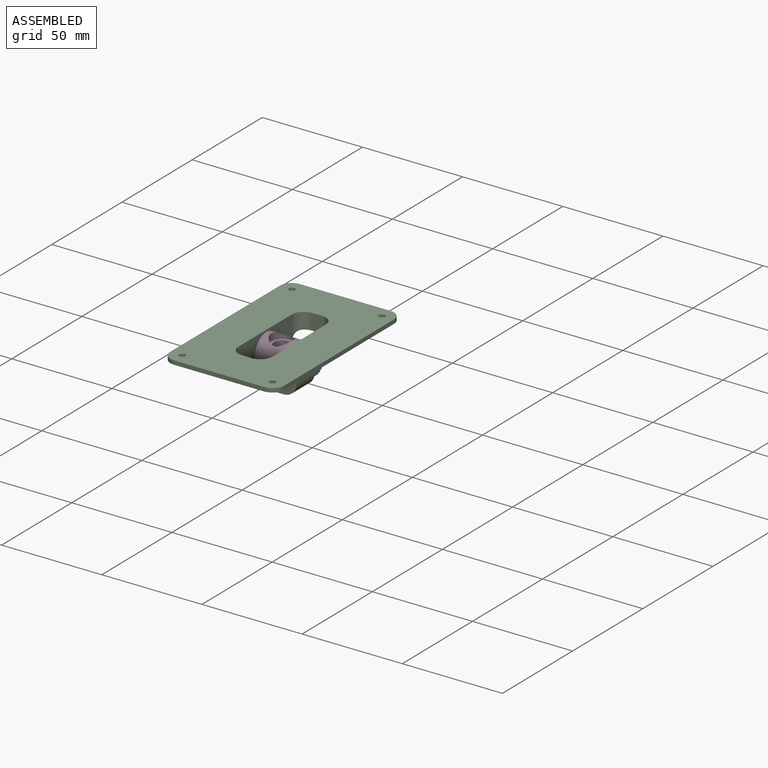
[diagram: assembled view]
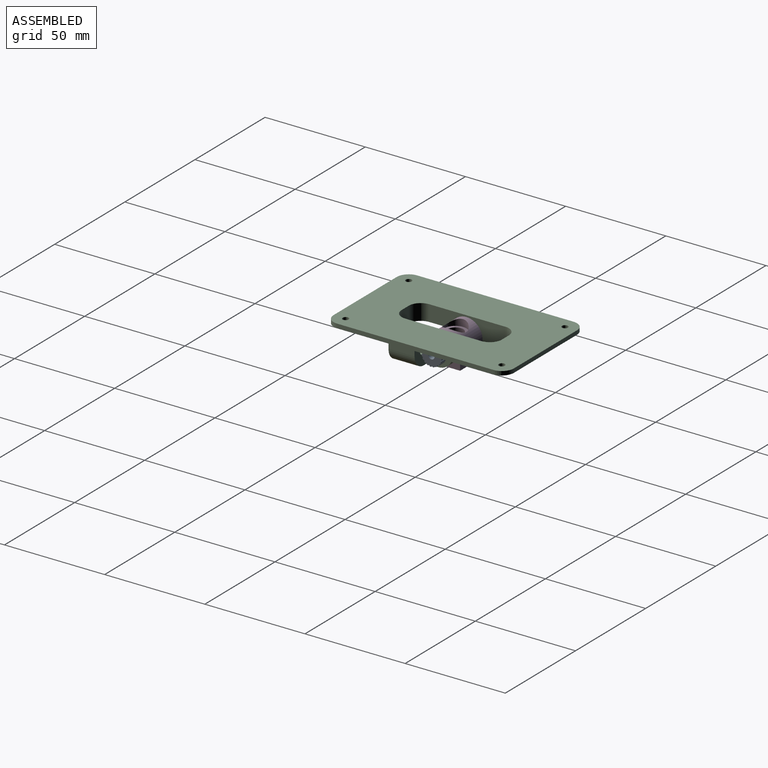
[diagram: assembled view, second angle]
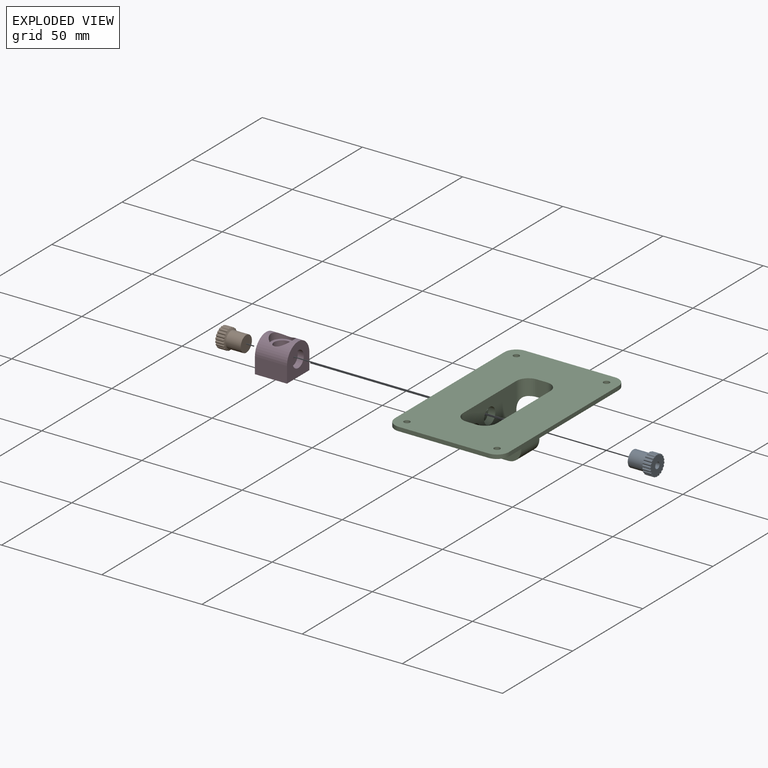
[diagram: exploded view]
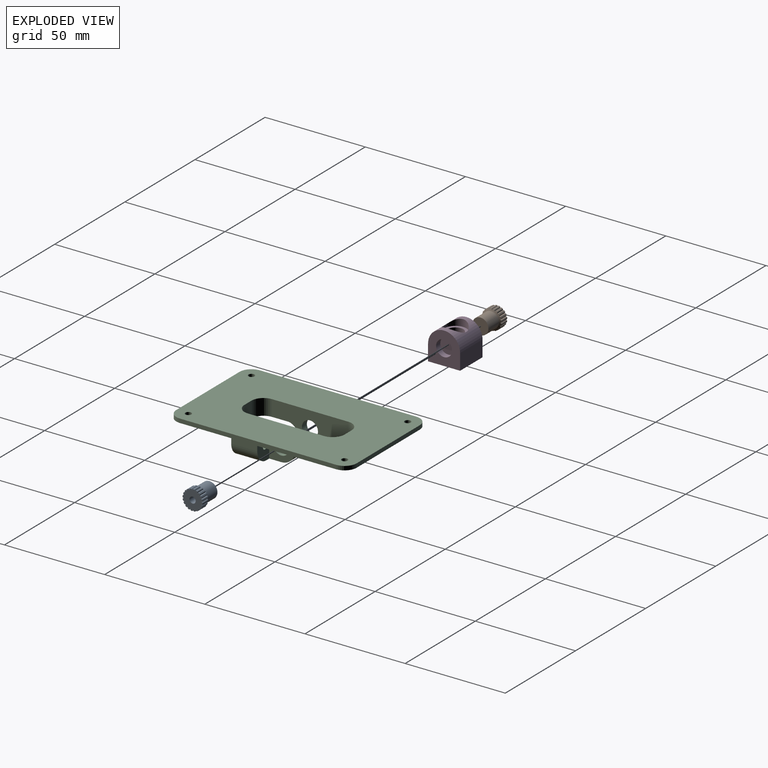
[diagram: exploded view, second angle]
ASSEMBLY  parts=4 mates=2
PART A: 126 faces, bbox 12x10x10 mm
  f0: plane 0.54x0.49mm, normal (1,0,0), area 0mm2, adj f21,f61,f62,f125
  f1: plane 0.67x0.3mm, normal (1,0,0), area 0mm2, adj f20,f65,f66,f125
  f2: plane 0.73x0.09mm, normal (1,0,0), area 0mm2, adj f19,f69,f70,f125
  f3: plane 0.71x0.16mm, normal (1,0,0), area 0mm2, adj f38,f73,f74,f125
  f4: plane 0.63x0.37mm, normal (1,0,0), area 0mm2, adj f37,f77,f78,f125
  f5: plane 0.54x0.49mm, normal (1,0,0), area 0mm2, adj f36,f81,f82,f125
  f6: plane 0.67x0.3mm, normal (1,0,0), area 0mm2, adj f35,f85,f86,f125
  f7: plane 0.73x0.09mm, normal (1,0,0), area 0mm2, adj f34,f89,f90,f125
  f8: plane 0.71x0.16mm, normal (1,0,0), area 0mm2, adj f33,f93,f94,f125
  f9: plane 0.63x0.37mm, normal (1,0,0), area 0mm2, adj f32,f97,f98,f125
  f10: plane 0.54x0.49mm, normal (1,0,0), area 0mm2, adj f31,f101,f102,f125
  f11: plane 0.67x0.3mm, normal (1,0,0), area 0mm2, adj f30,f105,f106,f125
  f12: plane 0.73x0.09mm, normal (1,0,0), area 0mm2, adj f29,f109,f110,f125
  f13: plane 0.71x0.16mm, normal (1,0,0), area 0mm2, adj f28,f113,f114,f125
  f14: plane 0.63x0.37mm, normal (1,0,0), area 0mm2, adj f27,f117,f118,f125
  f15: plane 0.54x0.49mm, normal (1,0,0), area 0mm2, adj f26,f42,f121,f125
  f16: plane 0.67x0.3mm, normal (1,0,0), area 0mm2, adj f25,f45,f46,f125
  f17: plane 0.73x0.09mm, normal (1,0,0), area 0mm2, adj f24,f49,f50,f125
  f18: plane 0.71x0.16mm, normal (1,0,0), area 0mm2, adj f23,f53,f54,f125
  f19: cylinder r=5mm len=4mm, axis (-1,0,0), area 2.2mm2, adj f2,f39,f69,f70
  f20: cylinder r=5mm len=4mm, axis (-1,0,0), area 2.2mm2, adj f1,f39,f65,f66
  f21: cylinder r=5mm len=4mm, axis (-1,0,0), area 2.2mm2, adj f0,f39,f61,f62
  f22: cylinder r=5mm len=4mm, axis (-1,0,0), area 2.2mm2, adj f39,f57,f58,f123
  f23: cylinder r=5mm len=4mm, axis (-1,0,0), area 2.2mm2, adj f18,f39,f53,f54
  f24: cylinder r=5mm len=4mm, axis (-1,0,0), area 2.2mm2, adj f17,f39,f49,f50
  f25: cylinder r=5mm len=4mm, axis (-1,0,0), area 2.2mm2, adj f16,f39,f45,f46
  f26: cylinder r=5mm len=4mm, axis (-1,0,0), area 2.2mm2, adj f15,f39,f42,f121
  f27: cylinder r=5mm len=4mm, axis (-1,0,0), area 2.2mm2, adj f14,f39,f117,f118
  f28: cylinder r=5mm len=4mm, axis (-1,0,0), area 2.2mm2, adj f13,f39,f113,f114
  f29: cylinder r=5mm len=4mm, axis (-1,0,0), area 2.2mm2, adj f12,f39,f109,f110
  f30: cylinder r=5mm len=4mm, axis (-1,0,0), area 2.2mm2, adj f11,f39,f105,f106
  f31: cylinder r=5mm len=4mm, axis (-1,0,0), area 2.2mm2, adj f10,f39,f101,f102
  f32: cylinder r=5mm len=4mm, axis (-1,0,0), area 2.2mm2, adj f9,f39,f97,f98
  f33: cylinder r=5mm len=4mm, axis (-1,0,0), area 2.2mm2, adj f8,f39,f93,f94
  f34: cylinder r=5mm len=4mm, axis (-1,0,0), area 2.2mm2, adj f7,f39,f89,f90
  f35: cylinder r=5mm len=4mm, axis (-1,0,0), area 2.2mm2, adj f6,f39,f85,f86
  f36: cylinder r=5mm len=4mm, axis (-1,0,0), area 2.2mm2, adj f5,f39,f81,f82
  f37: cylinder r=5mm len=4mm, axis (-1,0,0), area 2.2mm2, adj f4,f39,f77,f78
  f38: cylinder r=5mm len=4mm, axis (-1,0,0), area 2.2mm2, adj f3,f39,f73,f74
  f39: plane 9.99x9.99mm, normal (-1,0,0), area 67mm2, adj f19,f20,f21,f22,f23,f24,f25,f26
  f40: cylinder r=1.56mm len=8mm, axis (-1,0,0), area 78.5mm2, adj f39,f41
  f41: plane 3.13x3.13mm, normal (-1,0,0), area 7.7mm2, adj f40
  f42: cylinder r=0.25mm len=4.05mm, axis (-1,0,0), area 1mm2, adj f15,f26,f39,f43,f125
  f43: plane 4.26x0.46mm, normal (0,0.33,0.94), area 2mm2, adj f39,f42,f44,f125
  f44: plane 4.26x0.49mm, normal (0,-1,0.08), area 2mm2, adj f39,f43,f45,f125
  f45: cylinder r=0.25mm len=4.05mm, axis (-1,0,0), area 1mm2, adj f16,f25,f39,f44,f125
  f46: cylinder r=0.25mm len=4.05mm, axis (-1,0,0), area 1mm2, adj f16,f25,f39,f47,f125
  f47: plane 4.26x0.39mm, normal (0,0.61,0.79), area 2mm2, adj f39,f46,f48,f125
  f48: plane 4.26x0.45mm, normal (0,-0.92,0.39), area 2mm2, adj f39,f47,f49,f125
  f49: cylinder r=0.25mm len=4.05mm, axis (-1,0,0), area 1mm2, adj f17,f24,f39,f48,f125
  f50: cylinder r=0.25mm len=4.05mm, axis (-1,0,0), area 1mm2, adj f17,f24,f39,f51,f125
  f51: plane 4.26x0.41mm, normal (0,0.82,0.57), area 2mm2, adj f39,f50,f52,f125
  f52: plane 4.26x0.37mm, normal (0,-0.76,0.65), area 2mm2, adj f39,f51,f53,f125
  f53: cylinder r=0.25mm len=4.05mm, axis (-1,0,0), area 1mm2, adj f18,f23,f39,f52,f125
  f54: cylinder r=0.25mm len=4.05mm, axis (-1,0,0), area 1mm2, adj f18,f23,f39,f55,f125
  f55: plane 4.26x0.47mm, normal (0,0.96,0.28), area 2mm2, adj f39,f54,f56,f125
  f56: plane 4.26x0.42mm, normal (0,-0.52,0.86), area 2mm2, adj f39,f55,f57,f125
  f57: cylinder r=0.25mm len=4.05mm, axis (-1,0,0), area 1mm2, adj f22,f39,f56,f123,f125
  f58: cylinder r=0.25mm len=4.05mm, axis (-1,0,0), area 1mm2, adj f22,f39,f59,f123,f125
  f59: plane 4.26x0.49mm, normal (0,1,-0.03), area 2mm2, adj f39,f58,f60,f125
  f60: plane 4.26x0.48mm, normal (0,-0.23,0.97), area 2mm2, adj f39,f59,f61,f125
  f61: cylinder r=0.25mm len=4.05mm, axis (-1,0,0), area 1mm2, adj f0,f21,f39,f60,f125
  f62: cylinder r=0.25mm len=4.05mm, axis (-1,0,0), area 1mm2, adj f0,f21,f39,f63,f125
  f63: plane 4.26x0.46mm, normal (0,0.94,-0.33), area 2mm2, adj f39,f62,f64,f125
  f64: plane 4.26x0.49mm, normal (0,0.08,1), area 2mm2, adj f39,f63,f65,f125
  f65: cylinder r=0.25mm len=4.05mm, axis (-1,0,0), area 1mm2, adj f1,f20,f39,f64,f125
  f66: cylinder r=0.25mm len=4.05mm, axis (-1,0,0), area 1mm2, adj f1,f20,f39,f67,f125
  f67: plane 4.26x0.39mm, normal (0,0.79,-0.61), area 2mm2, adj f39,f66,f68,f125
  f68: plane 4.26x0.45mm, normal (0,0.39,0.92), area 2mm2, adj f39,f67,f69,f125
  f69: cylinder r=0.25mm len=4.05mm, axis (-1,0,0), area 1mm2, adj f2,f19,f39,f68,f125
  f70: cylinder r=0.25mm len=4.05mm, axis (-1,0,0), area 1mm2, adj f2,f19,f39,f71,f125
  f71: plane 4.26x0.41mm, normal (0,0.57,-0.82), area 2mm2, adj f39,f70,f72,f125
  f72: plane 4.26x0.37mm, normal (0,0.65,0.76), area 2mm2, adj f39,f71,f73,f125
  f73: cylinder r=0.25mm len=4.05mm, axis (-1,0,0), area 1mm2, adj f3,f38,f39,f72,f125
  f74: cylinder r=0.25mm len=4.05mm, axis (-1,0,0), area 1mm2, adj f3,f38,f39,f75,f125
  f75: plane 4.26x0.47mm, normal (0,0.28,-0.96), area 2mm2, adj f39,f74,f76,f125
  f76: plane 4.26x0.42mm, normal (0,0.86,0.52), area 2mm2, adj f39,f75,f77,f125
  f77: cylinder r=0.25mm len=4.05mm, axis (-1,0,0), area 1mm2, adj f4,f37,f39,f76,f125
  f78: cylinder r=0.25mm len=4.05mm, axis (-1,0,0), area 1mm2, adj f4,f37,f39,f79,f125
  f79: plane 4.26x0.49mm, normal (0,-0.03,-1), area 2mm2, adj f39,f78,f80,f125
  f80: plane 4.26x0.48mm, normal (0,0.97,0.23), area 2mm2, adj f39,f79,f81,f125
  f81: cylinder r=0.25mm len=4.05mm, axis (-1,0,0), area 1mm2, adj f5,f36,f39,f80,f125
  f82: cylinder r=0.25mm len=4.05mm, axis (-1,0,0), area 1mm2, adj f5,f36,f39,f83,f125
  f83: plane 4.26x0.46mm, normal (0,-0.33,-0.94), area 2mm2, adj f39,f82,f84,f125
  f84: plane 4.26x0.49mm, normal (0,1,-0.08), area 2mm2, adj f39,f83,f85,f125
  f85: cylinder r=0.25mm len=4.05mm, axis (-1,0,0), area 1mm2, adj f6,f35,f39,f84,f125
  f86: cylinder r=0.25mm len=4.05mm, axis (-1,0,0), area 1mm2, adj f6,f35,f39,f87,f125
  f87: plane 4.26x0.39mm, normal (0,-0.61,-0.79), area 2mm2, adj f39,f86,f88,f125
  f88: plane 4.26x0.45mm, normal (0,0.92,-0.39), area 2mm2, adj f39,f87,f89,f125
  f89: cylinder r=0.25mm len=4.05mm, axis (-1,0,0), area 1mm2, adj f7,f34,f39,f88,f125
  f90: cylinder r=0.25mm len=4.05mm, axis (-1,0,0), area 1mm2, adj f7,f34,f39,f91,f125
  f91: plane 4.26x0.41mm, normal (0,-0.82,-0.57), area 2mm2, adj f39,f90,f92,f125
  f92: plane 4.26x0.37mm, normal (0,0.76,-0.65), area 2mm2, adj f39,f91,f93,f125
  f93: cylinder r=0.25mm len=4.05mm, axis (-1,0,0), area 1mm2, adj f8,f33,f39,f92,f125
  f94: cylinder r=0.25mm len=4.05mm, axis (-1,0,0), area 1mm2, adj f8,f33,f39,f95,f125
  f95: plane 4.26x0.47mm, normal (0,-0.96,-0.28), area 2mm2, adj f39,f94,f96,f125
  f96: plane 4.26x0.42mm, normal (0,0.52,-0.86), area 2mm2, adj f39,f95,f97,f125
  f97: cylinder r=0.25mm len=4.05mm, axis (-1,0,0), area 1mm2, adj f9,f32,f39,f96,f125
  f98: cylinder r=0.25mm len=4.05mm, axis (-1,0,0), area 1mm2, adj f9,f32,f39,f99,f125
  f99: plane 4.26x0.49mm, normal (0,-1,0.03), area 2mm2, adj f39,f98,f100,f125
  f100: plane 4.26x0.48mm, normal (0,0.23,-0.97), area 2mm2, adj f39,f99,f101,f125
  f101: cylinder r=0.25mm len=4.05mm, axis (-1,0,0), area 1mm2, adj f10,f31,f39,f100,f125
  f102: cylinder r=0.25mm len=4.05mm, axis (-1,0,0), area 1mm2, adj f10,f31,f39,f103,f125
  f103: plane 4.26x0.46mm, normal (0,-0.94,0.33), area 2mm2, adj f39,f102,f104,f125
  f104: plane 4.26x0.49mm, normal (0,-0.08,-1), area 2mm2, adj f39,f103,f105,f125
  f105: cylinder r=0.25mm len=4.05mm, axis (-1,0,0), area 1mm2, adj f11,f30,f39,f104,f125
  f106: cylinder r=0.25mm len=4.05mm, axis (-1,0,0), area 1mm2, adj f11,f30,f39,f107,f125
  f107: plane 4.26x0.39mm, normal (0,-0.79,0.61), area 2mm2, adj f39,f106,f108,f125
  f108: plane 4.26x0.45mm, normal (0,-0.39,-0.92), area 2mm2, adj f39,f107,f109,f125
  f109: cylinder r=0.25mm len=4.05mm, axis (-1,0,0), area 1mm2, adj f12,f29,f39,f108,f125
  f110: cylinder r=0.25mm len=4.05mm, axis (-1,0,0), area 1mm2, adj f12,f29,f39,f111,f125
  f111: plane 4.26x0.41mm, normal (0,-0.57,0.82), area 2mm2, adj f39,f110,f112,f125
  f112: plane 4.26x0.37mm, normal (0,-0.65,-0.76), area 2mm2, adj f39,f111,f113,f125
  f113: cylinder r=0.25mm len=4.05mm, axis (-1,0,0), area 1mm2, adj f13,f28,f39,f112,f125
  f114: cylinder r=0.25mm len=4.05mm, axis (-1,0,0), area 1mm2, adj f13,f28,f39,f115,f125
  f115: plane 4.26x0.47mm, normal (0,-0.28,0.96), area 2mm2, adj f39,f114,f116,f125
  f116: plane 4.26x0.42mm, normal (0,-0.86,-0.52), area 2mm2, adj f39,f115,f117,f125
  f117: cylinder r=0.25mm len=4.05mm, axis (-1,0,0), area 1mm2, adj f14,f27,f39,f116,f125
  f118: cylinder r=0.25mm len=4.05mm, axis (-1,0,0), area 1mm2, adj f14,f27,f39,f119,f125
  f119: plane 4.26x0.49mm, normal (0,0.03,1), area 2mm2, adj f39,f118,f120,f125
  f120: plane 4.26x0.48mm, normal (0,-0.97,-0.23), area 2mm2, adj f39,f119,f121,f125
  f121: cylinder r=0.25mm len=4.05mm, axis (-1,0,0), area 1mm2, adj f15,f26,f39,f120,f125
  f122: cylinder r=4mm len=8mm, axis (1,0,0), area 188.5mm2, adj f124,f125
  f123: plane 0.63x0.37mm, normal (1,0,0), area 0mm2, adj f22,f57,f58,f125
  f124: plane 8x8mm, normal (1,0,0), area 50.3mm2, adj f122
  f125: cone r=4mm half-angle=63deg, axis (-1,0,0), area 27.2mm2, adj f0,f1,f2,f3,f4,f5,f6,f7
PART B: same geometry as A
PART C: 66 faces, bbox 57x90x15.5 mm
  f0: plane 90x57mm, normal (0,0,-1), area 3559.3mm2, adj f2,f4,f5,f6,f7,f11,f14,f16
  f1: cylinder r=4mm len=8mm, axis (-1,0,0), area 88mm2, adj f11,f13
  f2: plane 13.5x12mm, normal (0,-1,0), area 91.5mm2, adj f0,f13,f15,f16,f17,f19,f20,f21
  f3: cylinder r=4mm len=8mm, axis (1,0,0), area 88mm2, adj f25,f29
  f4: plane 45x2mm, normal (0,-1,0), area 90mm2, adj f0,f8,f43,f47
  f5: plane 78x2mm, normal (1,0,0), area 156mm2, adj f0,f8,f45,f47
  f6: plane 45x2mm, normal (0,1,0), area 90mm2, adj f0,f8,f45,f46
  f7: plane 78x2mm, normal (-1,0,0), area 156mm2, adj f0,f8,f43,f46
  f8: plane 90x57mm, normal (0,0,1), area 4251.7mm2, adj f4,f5,f6,f7,f13,f24,f25,f26
  f9: cylinder r=2.2mm len=9.5mm, axis (0,-1,0), area -1.6mm2, adj f18,f19,f20,f21,f23
  f10: cylinder r=1.5mm len=3mm, axis (0,-1,0), area 24.3mm2, adj f14,f18
  f11: plane 25x13.5mm, normal (1,0,0), area 189.6mm2, adj f0,f1,f12,f14,f15,f54,f57,f62
  f12: cylinder r=7mm len=6.49mm, axis (-1,0,0), area 29.1mm2, adj f11,f13,f15,f62
  f13: plane 38x15.5mm, normal (-1,0,0), area 441.1mm2, adj f1,f2,f8,f12,f15,f52,f53,f54
  f14: plane 13.5x8.5mm, normal (0,1,0), area 98.6mm2, adj f0,f10,f11,f15,f16,f17
  f15: plane 19x5.5mm, normal (0,0,-1), area 92.5mm2, adj f2,f11,f12,f13,f14,f17
  f16: plane 13x7mm, normal (1,0,0), area 91mm2, adj f0,f2,f14,f17
  f17: cylinder r=6.5mm len=13mm, axis (0,1,0), area 132.7mm2, adj f2,f14,f15,f16
  f18: cone r=0mm half-angle=59deg, axis (0,-1,0), area 9.5mm2, adj f9,f10,f22
  f19: cone r=2.2mm half-angle=45deg, axis (0,-1,0), area 6.2mm2, adj f2,f9,f20,f21
  f20: bspline ~10.22x6.12mm, area 129.7mm2, adj f2,f9,f19,f21,f22,f23
  f21: bspline ~10.22x6.12mm, area 125.3mm2, adj f2,f9,f19,f20,f23
  f22: cylinder r=2.2mm len=2.19mm, axis (0,1,0), area 0.3mm2, adj f18,f20,f23
  f23: plane 0.6x0.52mm, normal (0,0,1), area 0.2mm2, adj f9,f20,f21,f22
  f24: plane 8x5mm, normal (0,1,0), area 40mm2, adj f8,f50,f53,f58
  f25: plane 38x15.5mm, normal (1,0,0), area 441.1mm2, adj f3,f8,f30,f32,f33,f50,f51,f58
  f26: plane 8x5mm, normal (0,-1,0), area 40mm2, adj f8,f51,f52,f54
  f27: cylinder r=2.2mm len=9.5mm, axis (0,1,0), area -1.6mm2, adj f36,f37,f38,f39,f41
  f28: cylinder r=1.5mm len=3mm, axis (0,1,0), area 24.3mm2, adj f31,f36
  f29: plane 25x13.5mm, normal (-1,0,0), area 189.6mm2, adj f0,f3,f30,f31,f32,f58,f61,f64
  f30: cylinder r=7mm len=6.49mm, axis (1,0,0), area 29.1mm2, adj f25,f29,f32,f64
  f31: plane 13.5x8.5mm, normal (0,-1,0), area 98.6mm2, adj f0,f28,f29,f32,f34,f35
  f32: plane 19x5.5mm, normal (0,0,-1), area 92.5mm2, adj f25,f29,f30,f31,f33,f35
  f33: plane 13.5x12mm, normal (0,1,0), area 91.5mm2, adj f0,f25,f32,f34,f35,f37,f38,f39
  f34: plane 13x7mm, normal (-1,0,0), area 91mm2, adj f0,f31,f33,f35
  f35: cylinder r=6.5mm len=13mm, axis (0,-1,0), area 132.7mm2, adj f31,f32,f33,f34
  f36: cone r=0mm half-angle=59deg, axis (0,1,0), area 9.5mm2, adj f27,f28,f40
  f37: cone r=2.2mm half-angle=45deg, axis (0,1,0), area 6.2mm2, adj f27,f33,f38,f39
  f38: bspline ~10.22x6.12mm, area 129.7mm2, adj f27,f33,f37,f39,f40,f41
  f39: bspline ~10.22x6.12mm, area 125.3mm2, adj f27,f33,f37,f38,f41
  f40: cylinder r=2.2mm len=2.19mm, axis (0,-1,0), area 0.3mm2, adj f36,f38,f41
  f41: plane 0.6x0.52mm, normal (0,0,1), area 0.2mm2, adj f27,f38,f39,f40
  f42: cylinder r=1.5mm len=3mm, axis (0,0,-1), area 18.8mm2, adj f0,f8
  f43: cylinder r=6mm len=6mm, axis (0,0,-1), area 18.8mm2, adj f0,f4,f7,f8
  f44: cylinder r=1.5mm len=3mm, axis (0,0,-1), area 18.8mm2, adj f0,f8
  f45: cylinder r=6mm len=6mm, axis (0,0,-1), area 18.8mm2, adj f0,f5,f6,f8
  f46: cylinder r=6mm len=6mm, axis (0,0,-1), area 18.8mm2, adj f0,f6,f7,f8
  f47: cylinder r=6mm len=6mm, axis (0,0,-1), area 18.8mm2, adj f0,f4,f5,f8
  f48: cylinder r=1.5mm len=3mm, axis (0,0,-1), area 18.8mm2, adj f0,f8
  f49: cylinder r=1.5mm len=3mm, axis (0,0,-1), area 18.8mm2, adj f0,f8
  f50: cylinder r=6mm len=8mm, axis (0,0,1), area 75.4mm2, adj f8,f24,f25,f58
  f51: cylinder r=6mm len=13mm, axis (0,0,-1), area 81mm2, adj f8,f25,f26,f54,f65
  f52: cylinder r=6mm len=8mm, axis (0,0,1), area 75.4mm2, adj f8,f13,f26,f54
  f53: cylinder r=6mm len=13mm, axis (0,0,-1), area 81mm2, adj f8,f13,f24,f58,f63
  f54: plane 22.58x17.38mm, normal (0,0,-1), area 111.1mm2, adj f11,f13,f26,f51,f52,f55,f56,f57
  f55: cylinder r=9.5mm len=11mm, axis (0,0,1), area 95mm2, adj f0,f33,f54,f56,f65
  f56: plane 6x5mm, normal (0,1,0), area 30mm2, adj f0,f54,f55,f57
  f57: cylinder r=9.5mm len=9.5mm, axis (0,0,1), area 89.5mm2, adj f0,f11,f54,f56
  f58: plane 22.58x17.38mm, normal (0,0,-1), area 111.1mm2, adj f24,f25,f29,f50,f53,f59,f60,f61
  f59: cylinder r=9.5mm len=11mm, axis (0,0,1), area 95mm2, adj f0,f2,f58,f60,f63
  f60: plane 6x5mm, normal (0,-1,0), area 30mm2, adj f0,f58,f59,f61
  f61: cylinder r=9.5mm len=9.5mm, axis (0,0,1), area 89.5mm2, adj f0,f29,f58,f60
  f62: cylinder r=5mm len=4.64mm, axis (-1,0,0), area 20.8mm2, adj f11,f12,f13,f54
  f63: cylinder r=5mm len=6.18mm, axis (-1,0,0), area 26.1mm2, adj f2,f53,f58,f59
  f64: cylinder r=5mm len=4.64mm, axis (1,0,0), area 20.8mm2, adj f25,f29,f30,f58
  f65: cylinder r=5mm len=6.18mm, axis (1,0,0), area 26.1mm2, adj f33,f51,f54,f55
PART D: 13 faces, bbox 16x16x16 mm
  f0: plane 16x16mm, normal (-1,0,0), area 178.3mm2, adj f3,f4,f5,f6,f10
  f1: plane 16x16mm, normal (1,0,0), area 178.3mm2, adj f3,f4,f5,f6,f8
  f2: cylinder r=4mm len=12.5mm, axis (0,0,1), area 314.2mm2, adj f5,f12
  f3: plane 16x8mm, normal (0,-1,0), area 128mm2, adj f0,f1,f5,f6
  f4: plane 16x8mm, normal (0,1,0), area 128mm2, adj f0,f1,f5,f6
  f5: plane 16x16mm, normal (0,0,-1), area 205.7mm2, adj f0,f1,f2,f3,f4
  f6: cylinder r=8mm len=16mm, axis (-1,0,0), area 300.1mm2, adj f0,f1,f3,f4,f11
  f7: plane 8x8mm, normal (1,0,0), area 50.3mm2, adj f8
  f8: cylinder r=4mm len=8mm, axis (-1,0,0), area 75.4mm2, adj f1,f7
  f9: plane 8x8mm, normal (-1,0,0), area 50.3mm2, adj f10
  f10: cylinder r=4mm len=8mm, axis (1,0,0), area 75.4mm2, adj f0,f9
  f11: cylinder r=5.5mm len=11mm, axis (0,0,1), area 84.6mm2, adj f6,f12
  f12: plane 11x11mm, normal (0,0,1), area 44.8mm2, adj f2,f11
PLACE A rot(axis=(0,1,0),180deg) t=(17,0,-5)mm
PLACE B t=(-17,0,-5)mm
PLACE C t=(0,0,1.5)mm
PLACE D t=(0,0,3)mm
MATE fastened A.f19 <-> D.f8  axis (-1,0,0) through (5,0,-5)mm
MATE fastened D.f8 <-> C.f1  axis (1,0,0) through (8,0,-5)mm
